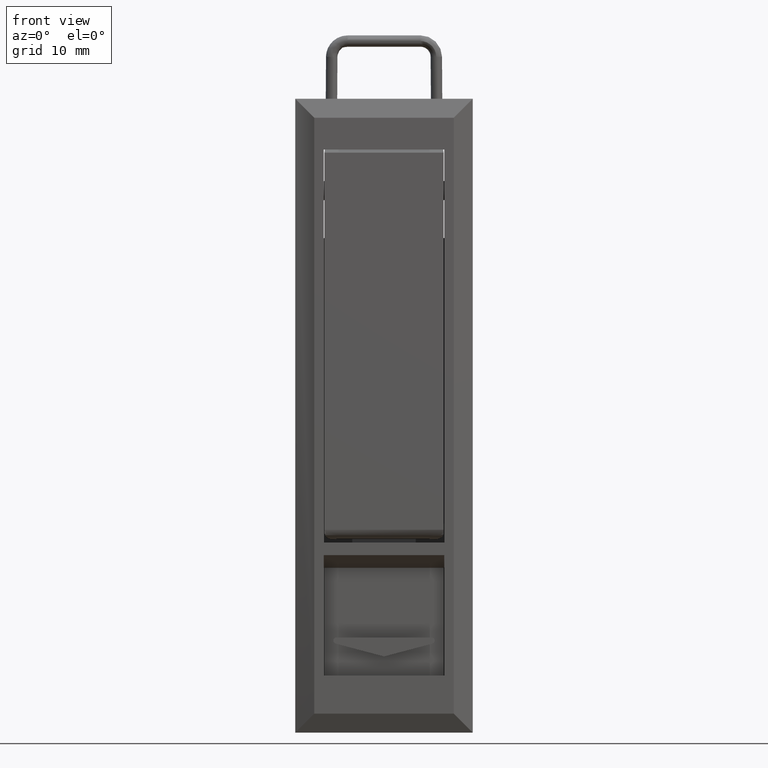
[diagram: clean part render]
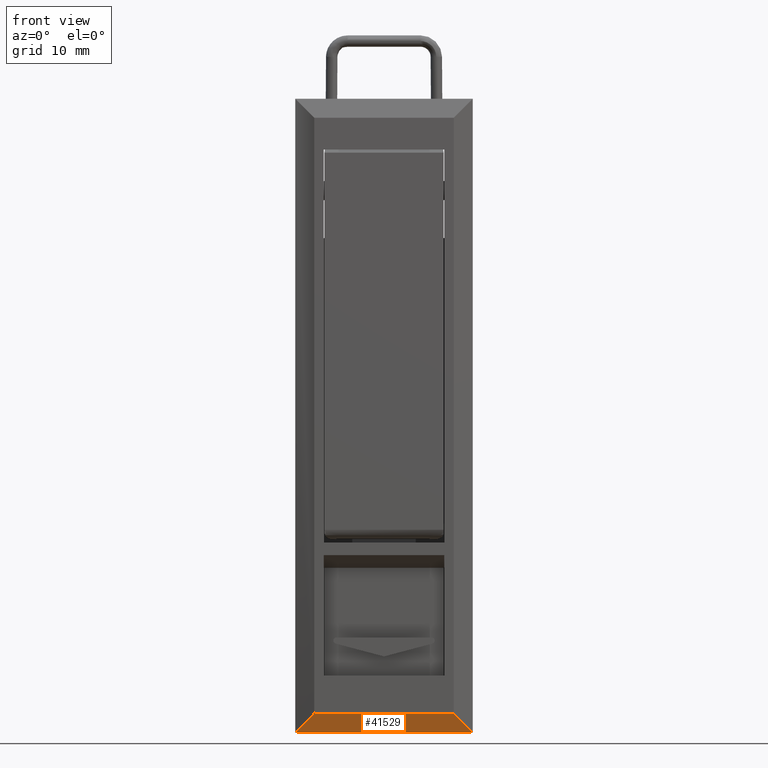
[diagram: same view with one face highlighted and labeled with its STEP entity id]
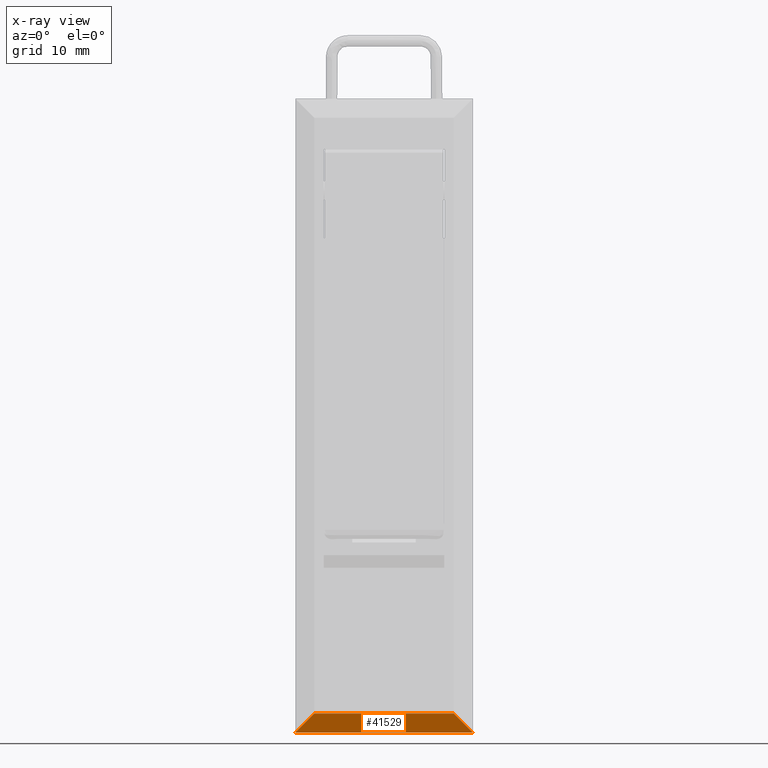
[diagram: x-ray of the same camera — body ghosted, the highlighted face saturated]
A machine part, front view. The second image highlights one B-rep face of the part: STEP entity #41529.
The next image is the same camera in x-ray: the body ghosted, the highlighted face saturated — about 0% of this face is hidden behind the body in this view.
In plain terms, the highlighted face is a freeform B-spline surface patch.
Its self-contained STEP definition (entity closure, byte-faithful):
#41359=CARTESIAN_POINT('',(-1.499999999999912,-11.0,3.0));
#41360=VERTEX_POINT('',#41359);
#41368=CARTESIAN_POINT('',(0.0,-14.0,0.0));
#41369=VERTEX_POINT('',#41368);
#41370=CARTESIAN_POINT('',(-1.499999999999912,-11.0,3.0));
#41371=CARTESIAN_POINT('',(0.0,-14.0,0.0));
#41372=QUASI_UNIFORM_CURVE('',1,(#41370,#41371),.UNSPECIFIED.,.F.,.U.);
#41373=EDGE_CURVE('',#41360,#41369,#41372,.T.);
#41397=CARTESIAN_POINT('',(0.0,14.000000000000121,0.0));
#41398=VERTEX_POINT('',#41397);
#41404=CARTESIAN_POINT('',(-1.499999999999916,11.0,3.0));
#41405=VERTEX_POINT('',#41404);
#41406=CARTESIAN_POINT('',(-1.499999999999916,11.0,3.0));
#41407=CARTESIAN_POINT('',(0.0,14.000000000000121,0.0));
#41408=QUASI_UNIFORM_CURVE('',1,(#41406,#41407),.UNSPECIFIED.,.F.,.U.);
#41409=EDGE_CURVE('',#41405,#41398,#41408,.T.);
#41510=CARTESIAN_POINT('',(0.074924997092705,-15.398599945730570,-0.149849994185418));
#41511=CARTESIAN_POINT('',(-1.574925037325755,-15.398599945730570,3.149850074651689));
#41512=CARTESIAN_POINT('',(0.074924997092705,15.398600696749220,-0.149849994185418));
#41513=CARTESIAN_POINT('',(-1.574925037325755,15.398600696749220,3.149850074651689));
#41514=B_SPLINE_SURFACE_WITH_KNOTS('',1,1,((#41510,#41512),(#41511,#41513)),.UNSPECIFIED.,.F.,.F.,.U.,(2,2),(2,2),(0.0,3.689176829640211),(0.0,30.797200642479801),.UNSPECIFIED.);
#41515=ORIENTED_EDGE('',*,*,#41373,.F.);
#41516=CARTESIAN_POINT('',(-1.499999999999916,11.0,3.0));
#41517=CARTESIAN_POINT('',(-1.499999999999912,-11.0,3.0));
#41518=QUASI_UNIFORM_CURVE('',1,(#41516,#41517),.UNSPECIFIED.,.F.,.U.);
#41519=EDGE_CURVE('',#41405,#41360,#41518,.T.);
#41520=ORIENTED_EDGE('',*,*,#41519,.F.);
#41521=ORIENTED_EDGE('',*,*,#41409,.T.);
#41522=CARTESIAN_POINT('',(0.0,14.000000000000121,0.0));
#41523=CARTESIAN_POINT('',(0.0,-14.0,0.0));
#41524=QUASI_UNIFORM_CURVE('',1,(#41522,#41523),.UNSPECIFIED.,.F.,.U.);
#41525=EDGE_CURVE('',#41398,#41369,#41524,.T.);
#41526=ORIENTED_EDGE('',*,*,#41525,.T.);
#41527=EDGE_LOOP('',(#41515,#41520,#41521,#41526));
#41528=FACE_OUTER_BOUND('',#41527,.T.);
#41529=ADVANCED_FACE('',(#41528),#41514,.T.);